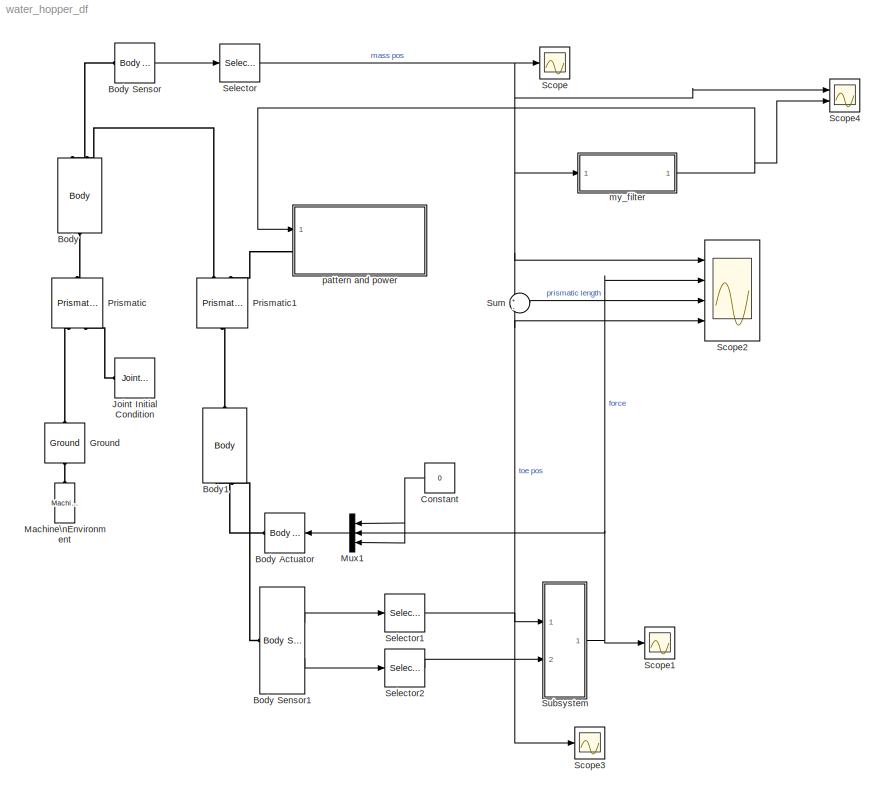
MODEL water_hopper_df
KIND model
BLOCK [Reference] Body  REF=mblibv1/Bodies/Body
  AttachedToCS = CG
  BodyColor = [1 0 0]
  BodyColorSelMode = MACHINE_DEFAULT
  CG = Left$CG$[0 0 0]$WORLD$WORLD$m$[0 0 0]$Euler X-Y-Z$deg$WORLD$false$none
  CGPos = [0 0 0]
  CGRot = [0 0 0]
  CS0Pos = []
  CS0Rot = []
  CS10Pos = []
  CS10Rot = []
  CS11Pos = []
  CS11Rot = []
  CS12Pos = []
  CS12Rot = []
  CS13Pos = []
  CS13Rot = []
  CS14Pos = []
  CS14Rot = []
  CS15Pos = []
  CS15Rot = []
  CS16Pos = []
  CS16Rot = []
  CS17Pos = []
  CS17Rot = []
  CS18Pos = []
  CS18Rot = []
  CS19Pos = []
  CS19Rot = []
  CS1Pos = [0 0 0]
  CS1Rot = [0 0 0]
  CS20Pos = []
  CS20Rot = []
  CS2Pos = [0 0 0]
  CS2Rot = [0 0 0]
  CS3Pos = [0 0 0]
  CS3Rot = [0 0 0]
  CS4Pos = []
  CS4Rot = []
  CS5Pos = []
  CS5Rot = []
  CS6Pos = []
  CS6Rot = []
  CS7Pos = []
  CS7Rot = []
  CS8Pos = []
  CS8Rot = []
  CS9Pos = []
  CS9Rot = []
  ClassName = Body
  Density = 1
  DensityUnits = kg/m^3
  DensityUse = false
  DialogClass = MechanicalBodyBlock
  GraphicsMode = MACHINE_DEFAULT
  Inertia = eye(3)
  InertiaUnits = kg*m^2
  LConnTagsString = CS1
  Mass = mass
  MassUnits = kg
  Ports = [0, 0, 0, 0, 0, 1, 2]
  RConnTagsString = CS2|CS3
  SID = 1
  Shape = Cylinder
  ShapeDims = [1 1]
  ShapeUnits = m
  ShapeUse = false
  SourceBlock = mblibv1/Bodies/Body
  SourceType = Body
  UpdateFromCAD = off
  WorkingFrames = Left$CS1$[0 0 0]$CG$CG$m$[0 0 0]$Euler X-Y-Z$deg$WORLD$true$none#Right$CS2$[0 0 0]$CG$CG$m$[0 0 0]$Euler X-Y-Z$deg$WORLD$true$none#Right$CS3$[0 0 0]$CG$CG$m$[0 0 0]$Euler X-Y-Z$deg$WORLD$true$none
BLOCK [Reference] Body Actuator  REF=mblibv1/Sensors & \nActuators/Body Actuator
  AccelerationUnits = m/s^2
  ActiveIO = on
  ActuationStyle = Force
  Angle = off
  AngleUnits = deg
  ArcAccelerationUnits = deg/s^2
  ArcVelocityUnits = deg/s
  ClassName = BodyActuatorForceTorque
  CoordPosition = on
  CoordPositionUnits = m
  DialogClass = MechanicalActuatorBlock
  Force = on
  ForceUnits = N
  PhysicalDomain = Mechanical
  PortType = blob
  Ports = [1, 0, 0, 0, 0, 0, 1]
  ReferenceFrame = Absolute (World)
  SID = 54
  SourceBlock = mblibv1/Sensors & \nActuators/Body Actuator
  SourceType = Body Actuator
  Torque = off
  TorqueUnits = N-m
  UpdateFromCAD = off
  VelocityUnits = m/s
  Width = 3
BLOCK [Reference] Body Sensor  REF=mblibv1/Sensors & \nActuators/Body Sensor
  Acceleration = off
  AccelerationUnits = m/s^2
  ActiveIO = on
  Angle = on
  AngleUnits = deg
  ArcAcceleration = off
  ArcAccelerationUnits = deg/s^2
  ArcVelocity = off
  ArcVelocityUnits = deg/s
  ClassName = BodySensor
  CoordPosition = on
  CoordPositionUnits = m
  DialogClass = MechanicalSensorBlock
  Muxed = on
  OutputVector = [1]
  PhysicalDomain = Mechanical
  PortType = blob
  Ports = [0, 1, 0, 0, 0, 1]
  Pose = off
  Quaternion = on
  QuaternionDDT = off
  QuaternionDT = off
  QuaternionUnits = off
  ReferenceFrame = Absolute (World)
  SID = 2
  SourceBlock = mblibv1/Sensors & \nActuators/Body Sensor
  SourceType = Body Sensor
  UpdateFromCAD = off
  Velocity = off
  VelocityUnits = m/s
  Width = 3
BLOCK [Reference] Body Sensor1  REF=mblibv1/Sensors & \nActuators/Body Sensor
  Acceleration = off
  AccelerationUnits = m/s^2
  ActiveIO = on
  Angle = on
  AngleUnits = deg
  ArcAcceleration = off
  ArcAccelerationUnits = deg/s^2
  ArcVelocity = off
  ArcVelocityUnits = deg/s
  ClassName = BodySensor
  CoordPosition = on
  CoordPositionUnits = m
  DialogClass = MechanicalSensorBlock
  Muxed = off
  OutputVector = [1]
  PhysicalDomain = Mechanical
  PortType = blob
  Ports = [0, 2, 0, 0, 0, 1]
  Pose = off
  Quaternion = on
  QuaternionDDT = off
  QuaternionDT = off
  QuaternionUnits = off
  ReferenceFrame = Absolute (World)
  SID = 58
  SourceBlock = mblibv1/Sensors & \nActuators/Body Sensor
  SourceType = Body Sensor
  UpdateFromCAD = off
  Velocity = on
  VelocityUnits = m/s
  Width = 6
BLOCK [Reference] Body1  REF=mblibv1/Bodies/Body
  AttachedToCS = CG
  BodyColor = [1 0 0]
  BodyColorSelMode = MACHINE_DEFAULT
  CG = Left$CG$[0 -leg_length 0]$CS1$CS1$m$[0 0 0]$Euler X-Y-Z$deg$WORLD$false$none
  CGPos = [0 -leg_length 0]
  CGRot = [0 0 0]
  CS0Pos = []
  CS0Rot = []
  CS10Pos = []
  CS10Rot = []
  CS11Pos = []
  CS11Rot = []
  CS12Pos = []
  CS12Rot = []
  CS13Pos = []
  CS13Rot = []
  CS14Pos = []
  CS14Rot = []
  CS15Pos = []
  CS15Rot = []
  CS16Pos = []
  CS16Rot = []
  CS17Pos = []
  CS17Rot = []
  CS18Pos = []
  CS18Rot = []
  CS19Pos = []
  CS19Rot = []
  CS1Pos = [0 0 0]
  CS1Rot = [0 0 0]
  CS20Pos = []
  CS20Rot = []
  CS2Pos = [0 -leg_length 0]
  CS2Rot = [0 0 0]
  CS3Pos = [0 -leg_length 0]
  CS3Rot = [0 0 0]
  CS4Pos = []
  CS4Rot = []
  CS5Pos = []
  CS5Rot = []
  CS6Pos = []
  CS6Rot = []
  CS7Pos = []
  CS7Rot = []
  CS8Pos = []
  CS8Rot = []
  CS9Pos = []
  CS9Rot = []
  ClassName = Body
  Density = 1
  DensityUnits = kg/m^3
  DensityUse = false
  DialogClass = MechanicalBodyBlock
  GraphicsMode = MACHINE_DEFAULT
  Inertia = eye(3)
  InertiaUnits = kg*m^2
  LConnTagsString = CS1
  Mass = 0
  MassUnits = kg
  Ports = [0, 0, 0, 0, 0, 1, 2]
  RConnTagsString = CS2|CS3
  SID = 53
  Shape = Cylinder
  ShapeDims = [1 1]
  ShapeUnits = m
  ShapeUse = false
  SourceBlock = mblibv1/Bodies/Body
  SourceType = Body
  UpdateFromCAD = off
  WorkingFrames = Left$CS1$[0 0 0]$Adjoining$Adjoining$m$[0 0 0]$Euler X-Y-Z$deg$WORLD$true$none#Right$CS2$[0 -leg_length 0]$CS1$CS1$m$[0 0 0]$Euler X-Y-Z$deg$WORLD$true$none#Right$CS3$[0 -leg_length 0]$CS1$CS1$m$[0 0 0]$Euler X-Y-Z$deg$WORLD$true$none
BLOCK [Constant] Constant
  SID = 68
  Value = 0
BLOCK [Reference] Ground  REF=mblibv1/Bodies/Ground
  ClassName = Ground
  CoordPosition = [0 0 0]
  CoordPositionUnits = m
  DialogClass = GroundBlock
  LeftPortType = env
  MachineId = [3 0]
  PhysicalDomain = Mechanical
  Ports = [0, 0, 0, 0, 0, 1, 1]
  RightPortType = workingframe
  SID = 3
  ShowEnvPort = on
  SourceBlock = mblibv1/Bodies/Ground
  SourceType = Ground
  StateVectorMgrId = 3
  UpdateFromCAD = off
  UserData = DataTag0
  UserDataPersistent = on
BLOCK [Reference] Joint Initial Condition  REF=mblibv1/Sensors & \nActuators/Joint Initial Condition
  ClassName = InitialCondition
  DialogClass = InitialConditionBlock
  InitialConditions = P1$true$y_0$m$deg$0$m/s$deg/s#P2$false$0$m$deg$0$m/s$deg/s#P3$false$0$m$deg$0$m/s$deg/s#R1$false$0$m$deg$0$m/s$deg/s#R2$false$0$m$deg$0$m/s$deg/s#R3$false$0$m$deg$0$m/s$deg/s#S$false$0$m$deg$0$m/s$deg/s
  LeftPortType = blob
  P1PIC = y_0
  P1VIC = 0
  P2PIC = 0
  P2VIC = 0
  P3PIC = 0
  P3VIC = 0
  PhysicalDomain = mechanical
  Ports = [0, 0, 0, 0, 0, 0, 1]
  R1PIC = 0
  R1VIC = 0
  R2PIC = 0
  R2VIC = 0
  R3PIC = 0
  R3VIC = 0
  RightPortType = blob
  SID = 98
  SPIC = 0
  SVIC = 0
  SourceBlock = mblibv1/Sensors & \nActuators/Joint Initial Condition
  SourceType = Joint Initial Condition
  UpdateFromCAD = off
BLOCK [Reference] Machine\nEnvironment  REF=mblibv1/Bodies/Machine\nEnvironment
  AnalysisType = Forward dynamics
  AngularAssemblyTolerance = 1e-3
  AngularAssemblyToleranceUnits = rad
  BodyColorSelMode = Use model default
  BodyVisualizationType = Use model default body geometries
  ClassName = Environment
  ConstraintAbsTolerance = 1e-4
  ConstraintRelTolerance = 1e-4
  ConstraintSolverType = Stabilizing
  DefaultBodyColor = [1 0 0]
  DialogTemplateClass = MECH.MachineEnvironment
  Dimensionality = Auto-detect
  Gravity = [0 -g 0]
  GravityAsSignal = off
  GravityUnits = m/s^2
  LinearAssemblyTolerance = 1e-3
  LinearAssemblyToleranceUnits = m
  PerturbationSize = 1e-5
  PhysicalDomain = Mechanical
  PortType = env
  Ports = [0, 0, 0, 0, 0, 0, 1]
  RedundancyAnalysisTolerance = 1e-14
  RedundancyAnalysisToleranceType = Automatically select tolerance
  SID = 25
  SourceBlock = mblibv1/Bodies/Machine\nEnvironment
  SourceType = Machine Environment
  StatePerturbationType = Fixed
  SyncWhenCopied = off
  UseRobustSingularityHandling = off
  VisualizeMachine = on
BLOCK [Mux] Mux1
  DisplayOption = bar
  Inputs = 3
  Ports = [3, 1]
  SID = 67
BLOCK [Reference] Prismatic  REF=mblibv1/Joints/Prismatic
  ClassName = Joint
  CutJoint = off
  DialogClass = JointBlock
  LConnTagsString = __newl0|SA1
  MarkAsCut = off
  NumSAPorts = 1
  P1Axis = [0 1 0]
  Ports = [0, 0, 0, 0, 0, 2, 1]
  PrimitiveProps = P1$World$[0 1 0]$prismatic
  Primitives = prismatic
  RConnTagsString = __newr0
  SID = 27
  SourceBlock = mblibv1/Joints/Prismatic
  SourceType = Prismatic
  UpdateFromCAD = off
BLOCK [Reference] Prismatic1  REF=mblibv1/Joints/Prismatic
  ClassName = Joint
  CutJoint = off
  DialogClass = JointBlock
  LConnTagsString = __newl0|SA1
  MarkAsCut = off
  NumSAPorts = 1
  P1Axis = [0 1 0]
  Ports = [0, 0, 0, 0, 0, 2, 1]
  PrimitiveProps = P1$World$[0 1 0]$prismatic
  Primitives = prismatic
  RConnTagsString = __newr0
  SID = 52
  SourceBlock = mblibv1/Joints/Prismatic
  SourceType = Prismatic
  UpdateFromCAD = off
BLOCK [Scope] Scope
  Floating = off
  LimitDataPoints = off
  NumInputPorts = 1
  Ports = [1]
  SID = 56
  SampleTime = 0
  SaveName = ball_position
  SaveToWorkspace = on
  ShowLegends = off
  YMax = -0.053005
  YMin = -0.053045
BLOCK [Scope] Scope1
  Floating = off
  LimitDataPoints = off
  NumInputPorts = 1
  Ports = [1]
  SID = 59
  SampleTime = 0
  SaveName = force
  SaveToWorkspace = on
  ShowLegends = off
BLOCK [Scope] Scope2
  DataFormat = StructureWithTime
  Floating = off
  LimitDataPoints = off
  NumInputPorts = 4
  Ports = [4]
  SID = 71
  SampleTime = 0
  SaveName = ScopeData2
  ShowLegends = off
  YMax = 5~5~5~5
  YMin = -5~-5~-5~-5
  ZoomMode = xonly
BLOCK [Scope] Scope3
  Floating = off
  LimitDataPoints = off
  NumInputPorts = 1
  Ports = [1]
  SID = 110
  SampleTime = 0
  SaveName = toe_position
  SaveToWorkspace = on
  ShowLegends = off
BLOCK [Scope] Scope4
  Floating = off
  LimitDataPoints = off
  NumInputPorts = 2
  Ports = [2]
  SID = 180
  SampleTime = 0
  SaveName = ball_position1
  ShowLegends = off
  YMax = 0.079~0.07411
  YMin = 0.066~0.07396
BLOCK [Selector] Selector
  IndexOptions = Index vector (dialog)
  Indices = [2]
  InputPortWidth = 3
  OutputSizes = 1
  Ports = [1, 1]
  SID = 28
BLOCK [Selector] Selector1
  IndexOptions = Index vector (dialog)
  Indices = [2]
  InputPortWidth = 3
  OutputSizes = 1
  Ports = [1, 1]
  SID = 60
BLOCK [Selector] Selector2
  IndexOptions = Index vector (dialog)
  Indices = [2]
  InputPortWidth = 3
  OutputSizes = 1
  Ports = [1, 1]
  SID = 64
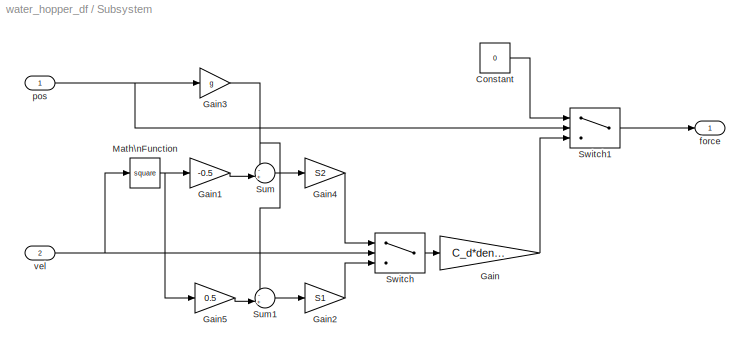
BLOCK [SubSystem] Subsystem
  FunctionWithSeparateData = off
  MaskHideContents = off
  MinAlgLoopOccurrences = off
  Opaque = off
  Ports = [2, 1]
  PropExecContextOutsideSubsystem = off
  RTWSystemCode = Auto
  RequestExecContextInheritance = off
  SID = 77
BLOCK [Constant] Subsystem/Constant
  SID = 80
  Value = 0
BLOCK [Gain] Subsystem/Gain
  Gain = C_d*density
  OutDataTypeStr = Inherit: Inherit via internal rule
  ParamDataTypeStr = Inherit: Inherit via internal rule
  SID = 81
  SaturateOnIntegerOverflow = off
BLOCK [Gain] Subsystem/Gain1
  Gain = -0.5
  OutDataTypeStr = Inherit: Inherit via internal rule
  ParamDataTypeStr = Inherit: Inherit via internal rule
  SID = 82
  SaturateOnIntegerOverflow = off
BLOCK [Gain] Subsystem/Gain2
  Gain = S1
  OutDataTypeStr = Inherit: Inherit via internal rule
  ParamDataTypeStr = Inherit: Inherit via internal rule
  SID = 83
  SaturateOnIntegerOverflow = off
BLOCK [Gain] Subsystem/Gain3
  Gain = g
  OutDataTypeStr = Inherit: Inherit via internal rule
  ParamDataTypeStr = Inherit: Inherit via internal rule
  SID = 84
  SaturateOnIntegerOverflow = off
BLOCK [Gain] Subsystem/Gain4
  Gain = S2
  OutDataTypeStr = Inherit: Inherit via internal rule
  ParamDataTypeStr = Inherit: Inherit via internal rule
  SID = 85
  SaturateOnIntegerOverflow = off
BLOCK [Gain] Subsystem/Gain5
  Gain = 0.5
  OutDataTypeStr = Inherit: Inherit via internal rule
  ParamDataTypeStr = Inherit: Inherit via internal rule
  SID = 93
  SaturateOnIntegerOverflow = off
BLOCK [Math] Subsystem/Math\nFunction
  Operator = square
  Ports = [1, 1]
  SID = 86
BLOCK [Sum] Subsystem/Sum
  IconShape = round
  InputSameDT = off
  Inputs = -+|
  OutDataTypeStr = Inherit: Inherit via internal rule
  Ports = [2, 1]
  SID = 87
  SaturateOnIntegerOverflow = off
BLOCK [Sum] Subsystem/Sum1
  IconShape = round
  InputSameDT = off
  Inputs = -+|
  OutDataTypeStr = Inherit: Inherit via internal rule
  Ports = [2, 1]
  SID = 92
  SaturateOnIntegerOverflow = off
BLOCK [Switch] Subsystem/Switch
  InputSameDT = off
  SID = 88
  SaturateOnIntegerOverflow = off
  ZeroCross = off
BLOCK [Switch] Subsystem/Switch1
  InputSameDT = off
  SID = 89
  SaturateOnIntegerOverflow = off
BLOCK [Outport] Subsystem/force
  IconDisplay = Port number
  SID = 90
BLOCK [Inport] Subsystem/pos
  IconDisplay = Port number
  SID = 78
BLOCK [Inport] Subsystem/vel
  IconDisplay = Port number
  Port = 2
  SID = 79
BLOCK [Sum] Sum
  IconShape = round
  InputSameDT = off
  Inputs = +|-
  OutDataTypeStr = Inherit: Inherit via internal rule
  Ports = [2, 1]
  SID = 72
  SaturateOnIntegerOverflow = off
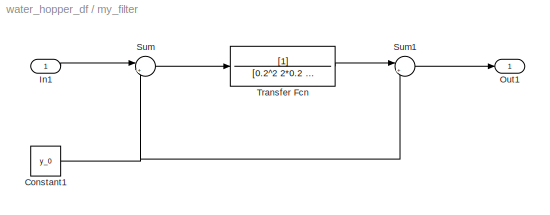
BLOCK [SubSystem] my_filter
  FunctionWithSeparateData = off
  MaskHideContents = off
  MinAlgLoopOccurrences = off
  Opaque = off
  Ports = [1, 1]
  PropExecContextOutsideSubsystem = off
  RTWSystemCode = Auto
  RequestExecContextInheritance = off
  SID = 199
BLOCK [Constant] my_filter/Constant1
  SID = 198
  Value = y_0
BLOCK [Inport] my_filter/In1
  IconDisplay = Port number
  SID = 200
BLOCK [Outport] my_filter/Out1
  IconDisplay = Port number
  SID = 201
BLOCK [Sum] my_filter/Sum
  IconShape = round
  InputSameDT = off
  Inputs = |+-
  OutDataTypeStr = Inherit: Inherit via internal rule
  Ports = [2, 1]
  SID = 203
  SaturateOnIntegerOverflow = off
BLOCK [Sum] my_filter/Sum1
  IconShape = round
  InputSameDT = off
  Inputs = |++
  OutDataTypeStr = Inherit: Inherit via internal rule
  Ports = [2, 1]
  SID = 204
  SaturateOnIntegerOverflow = off
BLOCK [TransferFcn] my_filter/Transfer Fcn
  Denominator = [0.2^2 2*0.2 1]
  SID = 179
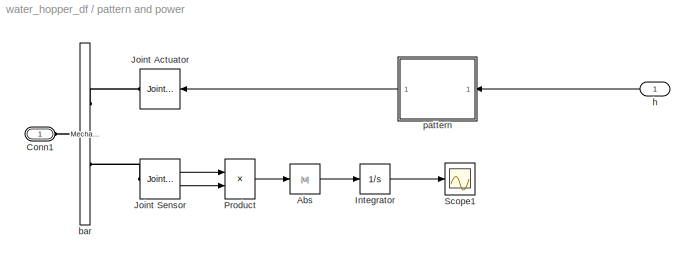
BLOCK [SubSystem] pattern and power
  FunctionWithSeparateData = off
  MaskHideContents = off
  MinAlgLoopOccurrences = off
  Opaque = off
  Ports = [1, 0, 0, 0, 0, 1]
  PropExecContextOutsideSubsystem = off
  RTWSystemCode = Auto
  RequestExecContextInheritance = off
  SID = 104
BLOCK [Abs] pattern and power/Abs
  SID = 107
  SaturateOnIntegerOverflow = off
BLOCK [PMIOPort] pattern and power/Conn1
  Port = 1
  SID = 105
  Side = Left
BLOCK [Integrator] pattern and power/Integrator
  Ports = [1, 1]
  SID = 108
BLOCK [Reference] pattern and power/Joint Actuator  REF=mblibv1/Sensors & \nActuators/Joint Actuator
  AccelerationUnits = m/s^2
  ActiveIO = on
  ActuationStyle = Motion
  AngleUnits = deg
  ArcAccelerationUnits = deg/s^2
  ArcVelocityUnits = deg/s
  ClassName = JointActuator
  CoordPositionUnits = m
  DialogClass = MechanicalActuatorBlock
  ForceUnits = N
  PhysicalDomain = Mechanical
  PortType = blob
  Ports = [1, 0, 0, 0, 0, 0, 1]
  Primitive = P1
  ReferenceFrame = Absolute (World)
  SID = 49
  SourceBlock = mblibv1/Sensors & \nActuators/Joint Actuator
  SourceType = Joint Actuator
  TorqueUnits = N*m
  UpdateFromCAD = off
  VelocityUnits = m/s
  Width = 3
BLOCK [Reference] pattern and power/Joint Sensor  REF=mblibv1/Sensors & \nActuators/Joint Sensor
  Acceleration = off
  AccelerationUnits = m/s^2
  ActiveIO = on
  Angle = on
  AngleUnits = deg
  ArcAcceleration = off
  ArcAccelerationUnits = deg/s^2
  ArcVelocity = off
  ArcVelocityUnits = deg/s
  ClassName = JointSensor
  CoordPosition = off
  CoordPositionUnits = m
  DialogClass = MechanicalSensorBlock
  Force = on
  ForceUnits = N
  Muxed = off
  OutputVector = [1]
  PhysicalDomain = Mechanical
  PortType = blob
  Ports = [0, 2, 0, 0, 0, 1]
  Pose = off
  Primitive = P1
  Quaternion = on
  QuaternionDDT = off
  QuaternionDT = off
  QuaternionUnits = off
  ReactionForce = off
  ReactionForceUnits = N
  ReactionMoment = off
  ReactionMomentUnits = N*m
  ReactionReferenceFrame = Absolute (World)
  ReactionSensedSide = Base
  ReferenceFrame = Absolute (World)
  SID = 101
  SourceBlock = mblibv1/Sensors & \nActuators/Joint Sensor
  SourceType = Joint Sensor
  Torque = off
  TorqueUnits = N*m
  UpdateFromCAD = off
  Velocity = on
  VelocityUnits = m/s
  Width = 2
BLOCK [Product] pattern and power/Product
  InputSameDT = off
  OutDataTypeStr = Inherit: Inherit via internal rule
  Ports = [2, 1]
  SID = 112
  SaturateOnIntegerOverflow = off
BLOCK [Scope] pattern and power/Scope1
  Floating = off
  LimitDataPoints = off
  NumInputPorts = 1
  Ports = [1]
  SID = 111
  SampleTime = 0
  SaveName = Work
  SaveToWorkspace = on
  ShowLegends = off
BLOCK [Reference] pattern and power/bar  REF=mblibv1/Utilities/Mechanical\nBranching\nBar
  ClassName = BranchingBar
  DialogClass = MechanicalBranchingBarBlock
  LConnTagsString = _newl0
  NumSAPorts = 2
  Ports = [0, 0, 0, 0, 0, 1, 2]
  RConnTagsString = SA0|SA1
  SID = 100
  SourceBlock = mblibv1/Utilities/Mechanical\nBranching\nBar
  SourceType = Mechanical Branching Bar
  UpdateFromCAD = off
BLOCK [Inport] pattern and power/h
  IconDisplay = Port number
  SID = 183
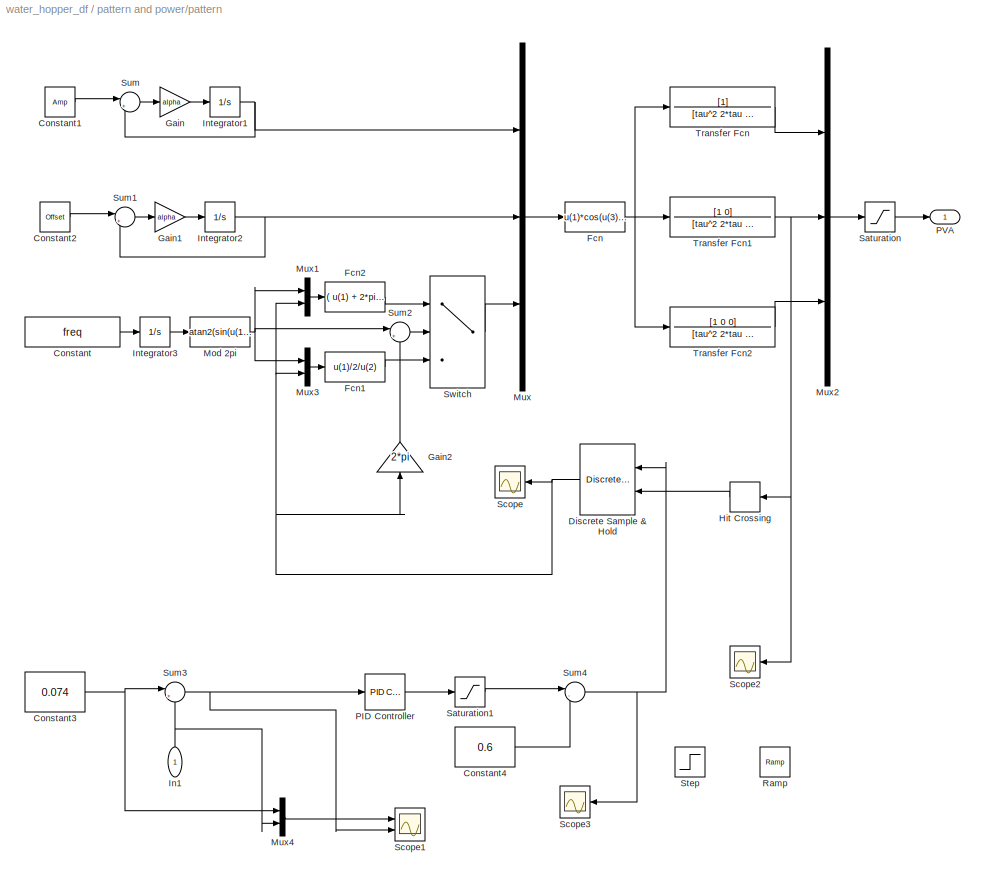
BLOCK [SubSystem] pattern and power/pattern
  FunctionWithSeparateData = off
  MaskHideContents = off
  MinAlgLoopOccurrences = off
  Opaque = off
  Ports = [1, 1]
  PropExecContextOutsideSubsystem = off
  RTWSystemCode = Auto
  RequestExecContextInheritance = off
  SID = 136
BLOCK [Constant] pattern and power/pattern/Constant
  SID = 137
  Value = freq
BLOCK [Constant] pattern and power/pattern/Constant1
  SID = 138
  Value = Amp
BLOCK [Constant] pattern and power/pattern/Constant2
  SID = 139
  Value = Offset
BLOCK [Constant] pattern and power/pattern/Constant3
  SID = 174
  Value = 0.074
BLOCK [Constant] pattern and power/pattern/Constant4
  SID = 193
  Value = 0.6
BLOCK [Reference] pattern and power/pattern/Discrete Sample & Hold  REF=powerlib_extras/Discrete \nControl Blocks/Discrete\nSample & Hold
  Ports = [2, 1]
  SID = 164
  SourceBlock = powerlib_extras/Discrete \nControl Blocks/Discrete\nSample & Hold
  SourceType = Discrete Sample & Hold
  Ts = 50e-6
  ic = 0
BLOCK [Fcn] pattern and power/pattern/Fcn
  Expr = u(1)*cos(u(3))+u(2)
  SID = 140
BLOCK [Fcn] pattern and power/pattern/Fcn1
  Expr = u(1)/2/u(2)
  SID = 141
BLOCK [Fcn] pattern and power/pattern/Fcn2
  Expr = ( u(1) + 2*pi*(1-2*u(2)) )/2/(1-u(2))
  SID = 142
BLOCK [Gain] pattern and power/pattern/Gain
  Gain = alpha
  OutDataTypeStr = Inherit: Inherit via internal rule
  ParamDataTypeStr = Inherit: Inherit via internal rule
  SID = 143
  SaturateOnIntegerOverflow = off
BLOCK [Gain] pattern and power/pattern/Gain1
  Gain = alpha
  OutDataTypeStr = Inherit: Inherit via internal rule
  ParamDataTypeStr = Inherit: Inherit via internal rule
  SID = 144
  SaturateOnIntegerOverflow = off
BLOCK [Gain] pattern and power/pattern/Gain2
  Gain = 2*pi
  OutDataTypeStr = Inherit: Inherit via internal rule
  ParamDataTypeStr = Inherit: Inherit via internal rule
  SID = 173
  SaturateOnIntegerOverflow = off
BLOCK [HitCross] pattern and power/pattern/Hit  Crossing
  HitCrossingDirection = falling
  Ports = [1, 1]
  SID = 162
BLOCK [Inport] pattern and power/pattern/In1
  IconDisplay = Port number
  SID = 182
BLOCK [Integrator] pattern and power/pattern/Integrator1
  Ports = [1, 1]
  SID = 145
BLOCK [Integrator] pattern and power/pattern/Integrator2
  Ports = [1, 1]
  SID = 146
BLOCK [Integrator] pattern and power/pattern/Integrator3
  InitialCondition = 0.01*rand
  Ports = [1, 1]
  SID = 147
BLOCK [Fcn] pattern and power/pattern/Mod 2pi
  Expr = atan2(sin(u(1)-pi),cos(u(1)-pi))+pi
  SID = 148
BLOCK [Mux] pattern and power/pattern/Mux
  DisplayOption = bar
  Inputs = 3
  Ports = [3, 1]
  SID = 149
BLOCK [Mux] pattern and power/pattern/Mux1
  DisplayOption = bar
  Inputs = 2
  Ports = [2, 1]
  SID = 175
BLOCK [Mux] pattern and power/pattern/Mux2
  DisplayOption = bar
  Inputs = 3
  Ports = [3, 1]
  SID = 150
BLOCK [Mux] pattern and power/pattern/Mux3
  DisplayOption = bar
  Inputs = 2
  Ports = [2, 1]
  SID = 176
BLOCK [Mux] pattern and power/pattern/Mux4
  DisplayOption = bar
  Inputs = 2
  Ports = [2, 1]
  SID = 190
BLOCK [Reference] pattern and power/pattern/PID Controller  REF=simulink/Continuous/PID Controller
  AntiWindupMode = none
  Controller = PID
  D = 0.5
  DOutDataTypeStr = Inherit: Inherit via internal rule
  DOutMax = []
  DOutMin = []
  DParamDataTypeStr = Inherit: Inherit via internal rule
  DParamMax = []
  DParamMin = []
  ExternalReset = none
  FilterContinuousStateAttributes = ''
  FilterMethod = Forward Euler
  FilterOutDataTypeStr = Inherit: Inherit via internal rule
  FilterOutMax = []
  FilterOutMin = []
  FilterRTWStateStorageClass = Auto
  FilterStateMustResolveToSignalObject = off
  Form = Parallel
  I = 0.05
  IOutDataTypeStr = Inherit: Inherit via internal rule
  IOutMax = []
  IOutMin = []
  IParamDataTypeStr = Inherit: Inherit via internal rule
  IParamMax = []
  IParamMin = []
  IgnoreLimit = off
  InitialConditionForFilter = 0
  InitialConditionForIntegrator = 0
  InitialConditionSource = internal
  IntegratorContinuousStateAttributes = ''
  IntegratorMethod = Forward Euler
  IntegratorOutDataTypeStr = Inherit: Inherit via internal rule
  IntegratorOutMax = []
  IntegratorOutMin = []
  IntegratorRTWStateStorageClass = Auto
  IntegratorStateMustResolveToSignalObject = off
  Kb = 1
  KbOutDataTypeStr = Inherit: Inherit via internal rule
  KbOutMax = []
  KbOutMin = []
  KbParamDataTypeStr = Inherit: Inherit via internal rule
  KbParamMax = []
  KbParamMin = []
  Kt = 1
  KtOutDataTypeStr = Inherit: Inherit via internal rule
  KtOutMax = []
  KtOutMin = []
  KtParamDataTypeStr = Inherit: Inherit via internal rule
  KtParamMax = []
  KtParamMin = []
  LimitOutput = off
  LinearizeAsGain = on
  LockScale = off
  LowerSaturationLimit = -inf
  N = 100
  NOutDataTypeStr = Inherit: Inherit via internal rule
  NOutMax = []
  NOutMin = []
  NParamDataTypeStr = Inherit: Inherit via internal rule
  NParamMax = []
  NParamMin = []
  P = 5
  POutDataTypeStr = Inherit: Inherit via internal rule
  POutMax = []
  POutMin = []
  PParamDataTypeStr = Inherit: Inherit via internal rule
  PParamMax = []
  PParamMin = []
  Ports = [1, 1]
  RndMeth = Floor
  SID = 186
  SampleTime = 1
  SaturateOnIntegerOverflow = off
  SaturationOutDataTypeStr = Inherit: Same as input
  SaturationOutMax = []
  SaturationOutMin = []
  SourceBlock = simulink/Continuous/PID Controller
  SourceType = PID 1dof
  SumAccumDataTypeStr = Inherit: Inherit via internal rule
  SumDAccumDataTypeStr = Inherit: Inherit via internal rule
  SumDOutDataTypeStr = Inherit: Inherit via internal rule
  SumDOutMax = []
  SumDOutMin = []
  SumI1AccumDataTypeStr = Inherit: Inherit via internal rule
  SumI1OutDataTypeStr = Inherit: Inherit via internal rule
  SumI1OutMax = []
  SumI1OutMin = []
  SumI2AccumDataTypeStr = Inherit: Inherit via internal rule
  SumI2OutDataTypeStr = Inherit: Inherit via internal rule
  SumI2OutMax = []
  SumI2OutMin = []
  SumI3AccumDataTypeStr = Inherit: Inherit via internal rule
  SumI3OutDataTypeStr = Inherit: Inherit via internal rule
  SumI3OutMax = []
  SumI3OutMin = []
  SumOutDataTypeStr = Inherit: Inherit via internal rule
  SumOutMax = []
  SumOutMin = []
  TimeDomain = Continuous-time
  TrackingMode = off
  UpperSaturationLimit = inf
  ZeroCross = on
BLOCK [Outport] pattern and power/pattern/PVA
  IconDisplay = Port number
  SID = 158
BLOCK [Reference] pattern and power/pattern/Ramp  REF=simulink/Sources/Ramp
  Ports = [0, 1]
  SID = 178
  SourceBlock = simulink/Sources/Ramp
  SourceType = Ramp
  VectorParams1D = on
  X0 = 0.3
  slope = 0.4/20
  start = 0
BLOCK [Saturate] pattern and power/pattern/Saturation
  InputPortMap = u0
  LowerLimit = -3*amp*freq^2
  Ports = [1, 1]
  SID = 151
  UpperLimit = 3*amp*freq^2
BLOCK [Saturate] pattern and power/pattern/Saturation1
  InputPortMap = u0
  LowerLimit = -0.3
  Ports = [1, 1]
  SID = 195
  UpperLimit = 0.3
BLOCK [Scope] pattern and power/pattern/Scope
  DataFormat = StructureWithTime
  Floating = off
  LimitDataPoints = off
  NumInputPorts = 1
  Ports = [1]
  SID = 167
  SampleTime = 0
  ShowLegends = off
BLOCK [Scope] pattern and power/pattern/Scope1
  DataFormat = StructureWithTime
  Floating = off
  LimitDataPoints = off
  NumInputPorts = 2
  Ports = [2]
  SID = 191
  SampleTime = 0
  SaveName = ScopeData1
  ShowLegends = off
  YMax = 5~5
  YMin = -5~-5
  ZoomMode = yonly
BLOCK [Scope] pattern and power/pattern/Scope2
  DataFormat = StructureWithTime
  Floating = off
  LimitDataPoints = off
  NumInputPorts = 1
  Ports = [1]
  SID = 169
  SampleTime = 0
  SaveName = ScopeData3
  ShowLegends = off
BLOCK [Scope] pattern and power/pattern/Scope3
  DataFormat = StructureWithTime
  Floating = off
  LimitDataPoints = off
  NumInputPorts = 1
  Ports = [1]
  SID = 194
  SampleTime = 0
  SaveName = ScopeData4
  ShowLegends = off
BLOCK [Step] pattern and power/pattern/Step
  After = 0.6
  Before = 0.4
  SID = 177
  SampleTime = 0
  Time = 2
BLOCK [Sum] pattern and power/pattern/Sum
  IconShape = round
  InputSameDT = off
  Inputs = |+-
  OutDataTypeStr = Inherit: Inherit via internal rule
  Ports = [2, 1]
  SID = 152
  SaturateOnIntegerOverflow = off
BLOCK [Sum] pattern and power/pattern/Sum1
  IconShape = round
  InputSameDT = off
  Inputs = |+-
  OutDataTypeStr = Inherit: Inherit via internal rule
  Ports = [2, 1]
  SID = 153
  SaturateOnIntegerOverflow = off
BLOCK [Sum] pattern and power/pattern/Sum2
  IconShape = round
  InputSameDT = off
  Inputs = |+-
  OutDataTypeStr = Inherit: Inherit via internal rule
  Ports = [2, 1]
  SID = 172
  SaturateOnIntegerOverflow = off
BLOCK [Sum] pattern and power/pattern/Sum3
  IconShape = round
  InputSameDT = off
  Inputs = |+-
  OutDataTypeStr = Inherit: Inherit via internal rule
  Ports = [2, 1]
  SID = 184
  SaturateOnIntegerOverflow = off
BLOCK [Sum] pattern and power/pattern/Sum4
  IconShape = round
  InputSameDT = off
  Inputs = |-+
  OutDataTypeStr = Inherit: Inherit via internal rule
  Ports = [2, 1]
  SID = 197
  SaturateOnIntegerOverflow = off
BLOCK [Switch] pattern and power/pattern/Switch
  InputSameDT = off
  SID = 154
  SaturateOnIntegerOverflow = off
BLOCK [TransferFcn] pattern and power/pattern/Transfer Fcn
  Denominator = [tau^2 2*tau 1]
  SID = 155
BLOCK [TransferFcn] pattern and power/pattern/Transfer Fcn1
  Denominator = [tau^2 2*tau 1]
  Numerator = [1 0]
  SID = 156
BLOCK [TransferFcn] pattern and power/pattern/Transfer Fcn2
  Denominator = [tau^2 2*tau 1]
  Numerator = [1 0 0]
  SID = 157
LINE Body Sensor1:1 -> Selector1:1
LINE Body Sensor1:2 -> Selector2:1
LINE Body Sensor:1 -> Selector:1
NET Constant:1 -> Mux1:1, Mux1:3
LINE Mux1:1 -> Body Actuator:1
NET Selector1:1 -> Scope2:4, Scope3:1, Subsystem:1, Sum:2
LINE Selector2:1 -> Subsystem:2
NET Selector:1 -> Scope2:1, Scope4:1, Scope:1, Sum:1, my_filter:1
LINE Subsystem/Constant:1 -> Subsystem/Switch1:1
LINE Subsystem/Gain1:1 -> Subsystem/Sum:2
LINE Subsystem/Gain2:1 -> Subsystem/Switch:3
NET Subsystem/Gain3:1 -> Subsystem/Sum1:1, Subsystem/Sum:1
LINE Subsystem/Gain4:1 -> Subsystem/Switch:1
LINE Subsystem/Gain5:1 -> Subsystem/Sum1:2
LINE Subsystem/Gain:1 -> Subsystem/Switch1:3
NET Subsystem/Math\nFunction:1 -> Subsystem/Gain1:1, Subsystem/Gain5:1
LINE Subsystem/Sum1:1 -> Subsystem/Gain2:1
LINE Subsystem/Sum:1 -> Subsystem/Gain4:1
LINE Subsystem/Switch1:1 -> Subsystem/force:1
LINE Subsystem/Switch:1 -> Subsystem/Gain:1
NET Subsystem/pos:1 -> Subsystem/Gain3:1, Subsystem/Switch1:2
NET Subsystem/vel:1 -> Subsystem/Math\nFunction:1, Subsystem/Switch:2
NET Subsystem:1 -> Mux1:2, Scope1:1, Scope2:2
LINE Sum:1 -> Scope2:3
NET my_filter/Constant1:1 -> my_filter/Sum1:2, my_filter/Sum:2
LINE my_filter/In1:1 -> my_filter/Sum:1
LINE my_filter/Sum1:1 -> my_filter/Out1:1
LINE my_filter/Sum:1 -> my_filter/Transfer Fcn:1
LINE my_filter/Transfer Fcn:1 -> my_filter/Sum1:1
NET my_filter:1 -> Scope4:2, pattern and power:1
LINE pattern and power/Abs:1 -> pattern and power/Integrator:1
LINE pattern and power/Integrator:1 -> pattern and power/Scope1:1
LINE pattern and power/Joint Sensor:1 -> pattern and power/Product:1
LINE pattern and power/Joint Sensor:2 -> pattern and power/Product:2
LINE pattern and power/Product:1 -> pattern and power/Abs:1
LINE pattern and power/h:1 -> pattern and power/pattern:1
LINE pattern and power/pattern/Constant1:1 -> pattern and power/pattern/Sum:1
LINE pattern and power/pattern/Constant2:1 -> pattern and power/pattern/Sum1:1
NET pattern and power/pattern/Constant3:1 -> pattern and power/pattern/Mux4:1, pattern and power/pattern/Sum3:1
LINE pattern and power/pattern/Constant4:1 -> pattern and power/pattern/Sum4:2
LINE pattern and power/pattern/Constant:1 -> pattern and power/pattern/Integrator3:1
NET pattern and power/pattern/Discrete Sample & Hold:1 -> pattern and power/pattern/Gain2:1, pattern and power/pattern/Mux1:2, pattern and power/pattern/Mux3:2, pattern and power/pattern/Scope:1
LINE pattern and power/pattern/Fcn1:1 -> pattern and power/pattern/Switch:3
LINE pattern and power/pattern/Fcn2:1 -> pattern and power/pattern/Switch:1
NET pattern and power/pattern/Fcn:1 -> pattern and power/pattern/Transfer Fcn1:1, pattern and power/pattern/Transfer Fcn2:1, pattern and power/pattern/Transfer Fcn:1
LINE pattern and power/pattern/Gain1:1 -> pattern and power/pattern/Integrator2:1
LINE pattern and power/pattern/Gain2:1 -> pattern and power/pattern/Sum2:2
LINE pattern and power/pattern/Gain:1 -> pattern and power/pattern/Integrator1:1
LINE pattern and power/pattern/Hit  Crossing:1 -> pattern and power/pattern/Discrete Sample & Hold:2
NET pattern and power/pattern/In1:1 -> pattern and power/pattern/Mux4:2, pattern and power/pattern/Sum3:2
NET pattern and power/pattern/Integrator1:1 -> pattern and power/pattern/Mux:1, pattern and power/pattern/Sum:2
NET pattern and power/pattern/Integrator2:1 -> pattern and power/pattern/Mux:2, pattern and power/pattern/Sum1:2
LINE pattern and power/pattern/Integrator3:1 -> pattern and power/pattern/Mod 2pi:1
NET pattern and power/pattern/Mod 2pi:1 -> pattern and power/pattern/Mux1:1, pattern and power/pattern/Mux3:1, pattern and power/pattern/Sum2:1
LINE pattern and power/pattern/Mux1:1 -> pattern and power/pattern/Fcn2:1
LINE pattern and power/pattern/Mux2:1 -> pattern and power/pattern/Saturation:1
LINE pattern and power/pattern/Mux3:1 -> pattern and power/pattern/Fcn1:1
LINE pattern and power/pattern/Mux4:1 -> pattern and power/pattern/Scope1:1
LINE pattern and power/pattern/Mux:1 -> pattern and power/pattern/Fcn:1
LINE pattern and power/pattern/PID Controller:1 -> pattern and power/pattern/Saturation1:1
LINE pattern and power/pattern/Saturation1:1 -> pattern and power/pattern/Sum4:1
LINE pattern and power/pattern/Saturation:1 -> pattern and power/pattern/PVA:1
LINE pattern and power/pattern/Sum1:1 -> pattern and power/pattern/Gain1:1
LINE pattern and power/pattern/Sum2:1 -> pattern and power/pattern/Switch:2
NET pattern and power/pattern/Sum3:1 -> pattern and power/pattern/PID Controller:1, pattern and power/pattern/Scope1:2
NET pattern and power/pattern/Sum4:1 -> pattern and power/pattern/Discrete Sample & Hold:1, pattern and power/pattern/Scope3:1
LINE pattern and power/pattern/Sum:1 -> pattern and power/pattern/Gain:1
LINE pattern and power/pattern/Switch:1 -> pattern and power/pattern/Mux:3
NET pattern and power/pattern/Transfer Fcn1:1 -> pattern and power/pattern/Hit  Crossing:1, pattern and power/pattern/Mux2:2, pattern and power/pattern/Scope2:1
LINE pattern and power/pattern/Transfer Fcn2:1 -> pattern and power/pattern/Mux2:3
LINE pattern and power/pattern/Transfer Fcn:1 -> pattern and power/pattern/Mux2:1
LINE pattern and power/pattern:1 -> pattern and power/Joint Actuator:1
PLINE Body Actuator:RConn1 -- Body1:RConn1
PLINE Body Sensor1:LConn1 -- Body1:RConn2
PLINE Body Sensor:LConn1 -- Body:RConn1
PLINE Body1:LConn1 -- Prismatic1:RConn1
PLINE Body:LConn1 -- Prismatic:RConn1
PLINE Body:RConn2 -- Prismatic1:LConn1
PLINE Ground:LConn1 -- Machine\nEnvironment:RConn1
PLINE Ground:RConn1 -- Prismatic:LConn1
PLINE Joint Initial Condition:RConn1 -- Prismatic:LConn2
PLINE Prismatic1:LConn2 -- pattern and power:LConn1
PLINE pattern and power/Conn1:RConn1 -- pattern and power/bar:LConn1
PLINE pattern and power/Joint Actuator:RConn1 -- pattern and power/bar:RConn1
PLINE pattern and power/Joint Sensor:LConn1 -- pattern and power/bar:RConn2
note: NET lines group one-source signal fan-out (src -> all destinations, sorted); 1:1 wires keep LINE
